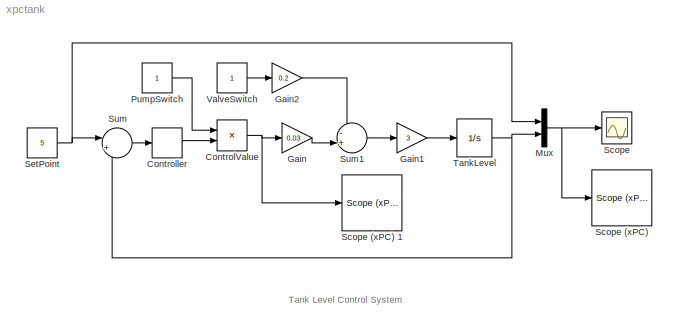
MODEL xpctank
KIND model
BLOCK [Product] ControlValue
  Description = ToxPC(1,2,3)=OnSwitchValue OffSwitchValue OnOutputValue;
  Ports = [2, 1]
BLOCK [Relay] Controller
  Description = xPCTag(1,2,3)=ToOnSwitch ToOffSwitch ToOnOutput;
  OffSwitchValue = -1
  OnOutputValue = 10
  OnSwitchValue = 1
BLOCK [Gain] Gain
  Gain = 0.03
BLOCK [Gain] Gain1
  Gain = 3
BLOCK [Gain] Gain2
  Gain = 0.2
BLOCK [Mux] Mux
  DisplayOption = bar
  Inputs = 2
  Ports = [2, 1]
BLOCK [Constant] PumpSwitch
  Description = xPCTag(1)=ToPumpSwitch;
BLOCK [Scope] Scope
  DataFormat = StructureWithTime
  LimitDataPoints = off
  NumInputPorts = 1
  Ports = [1]
  YMax = 15
  YMin = 0
BLOCK [Reference] Scope (xPC)   REF=xpclib/Misc./Scope (xPC) 
  Ports = [1]
  ShowPortLabels = on
  SourceBlock = xpclib/Misc./Scope (xPC)
  SourceType = xpcscopeblock
  autorestart = off
  autostart = on
  filename = data.dat
  formatstr = '%15.6f'
  grid = on
  interleave = 100
  mode = Lazy
  noprepostsamples = 0
  nosamples = 500
  scopeno = 1
  scopetype = Target
  triggerlevel = 0.0
  triggermode = FreeRun
  triggersample = 0
  triggerscope = 1
  triggersignal = 1
  triggerslope = Either
  viewmode = Graphical rolling
  writesize = 512
  ylimits = [0,10]
BLOCK [Reference] Scope (xPC) 1  REF=xpclib/Misc./Scope (xPC) 
  Ports = [1]
  ShowPortLabels = on
  SourceBlock = xpclib/Misc./Scope (xPC)
  SourceType = xpcscopeblock
  autorestart = off
  autostart = on
  filename = data.dat
  formatstr = '%15.6f'
  grid = on
  interleave = 100
  mode = Lazy
  noprepostsamples = 0
  nosamples = 500
  scopeno = 2
  scopetype = Target
  triggerlevel = 0.0
  triggermode = FreeRun
  triggersample = 0
  triggerscope = 1
  triggersignal = 1
  triggerslope = Either
  viewmode = Graphical rolling
  writesize = 512
  ylimits = [0,15]
BLOCK [Constant] SetPoint
  Description = xPCTag(1)=ToSetPoint;
  Value = 5
BLOCK [Sum] Sum
  IconShape = round
  Inputs = |+-
  Ports = [2, 1]
BLOCK [Sum] Sum1
  IconShape = round
  Inputs = -+|
  Ports = [2, 1]
BLOCK [Integrator] TankLevel
  LimitOutput = on
  LowerSaturationLimit = 0
  Ports = [1, 1]
  UpperSaturationLimit = +inf
BLOCK [Constant] ValveSwitch
  Description = xPCTag(1)=ToValueSwitch;
ANNOTATION (root): Tank Level Control System
NET ControlValue:1 -> Gain:1, Scope (xPC) 1:1
LINE Controller:1 -> ControlValue:2
LINE Gain1:1 -> TankLevel:1
LINE Gain2:1 -> Sum1:1
LINE Gain:1 -> Sum1:2
NET Mux:1 -> Scope (xPC) :1, Scope:1
LINE PumpSwitch:1 -> ControlValue:1
NET SetPoint:1 -> Mux:1, Sum:1
LINE Sum1:1 -> Gain1:1
LINE Sum:1 -> Controller:1
NET TankLevel:1 -> Mux:2, Sum:2
LINE ValveSwitch:1 -> Gain2:1
note: NET lines group one-source signal fan-out (src -> all destinations, sorted); 1:1 wires keep LINE
